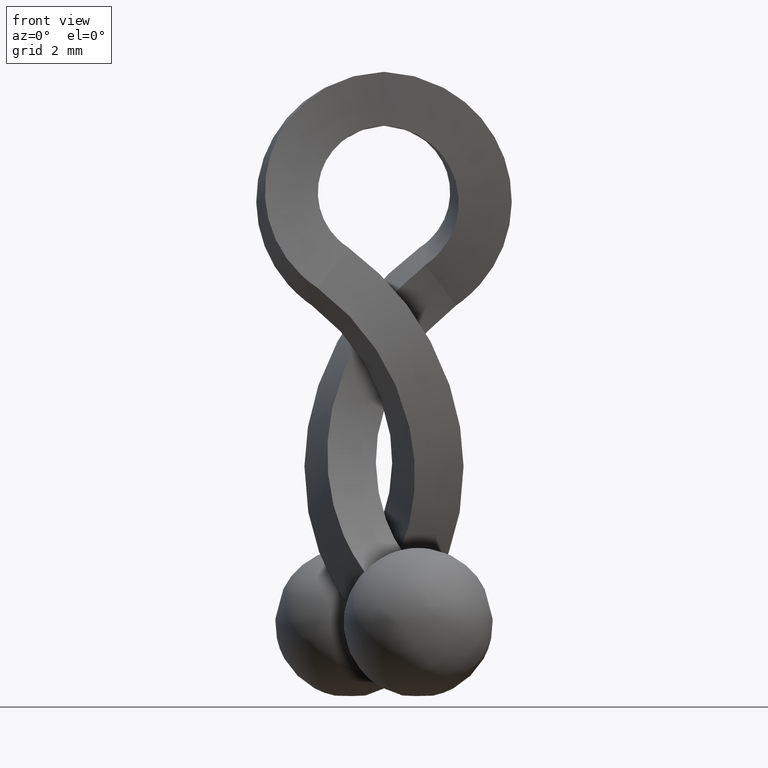
[diagram: clean part render]
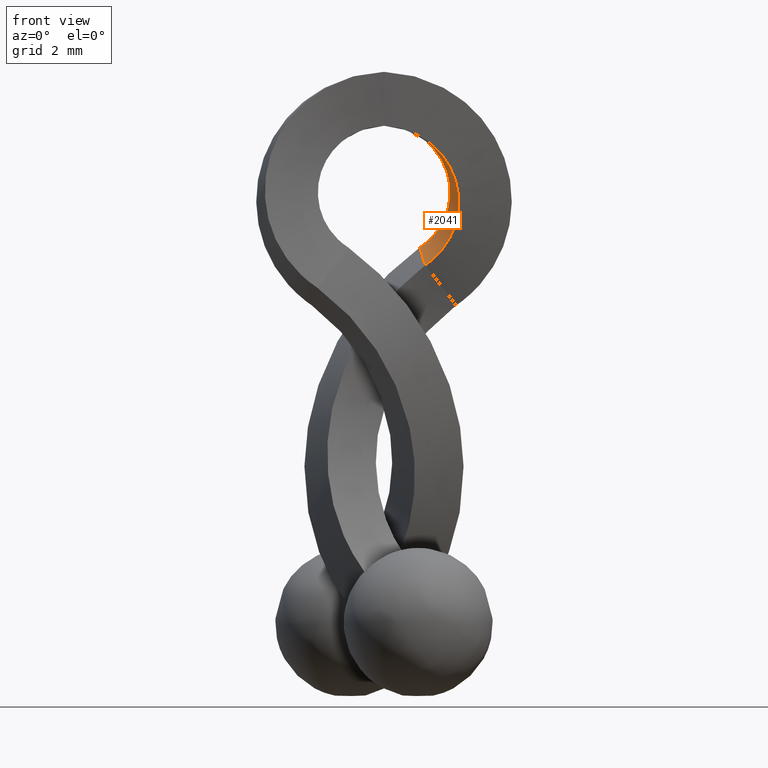
[diagram: same view with one face highlighted and labeled with its STEP entity id]
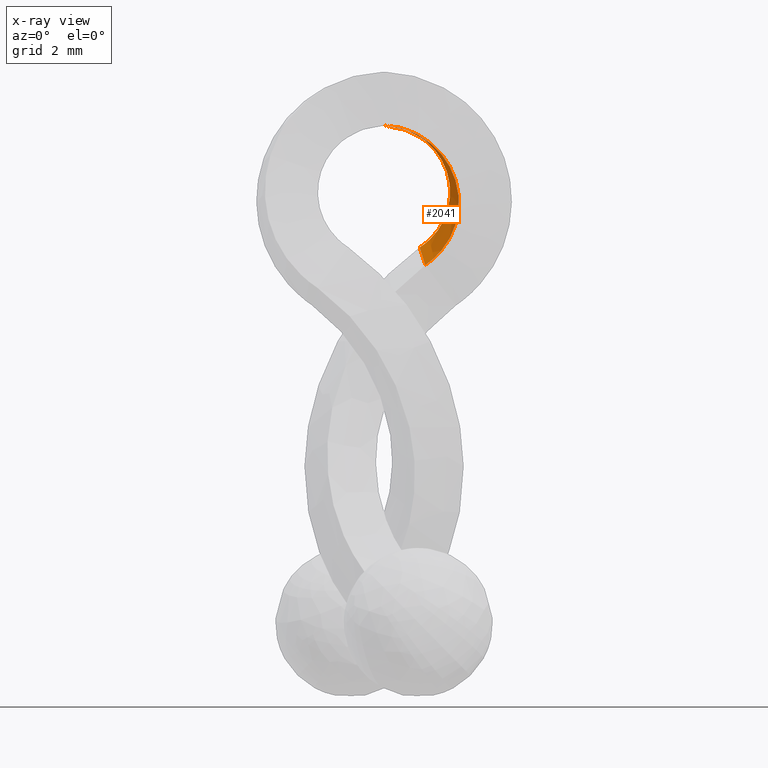
[diagram: x-ray of the same camera — body ghosted, the highlighted face saturated]
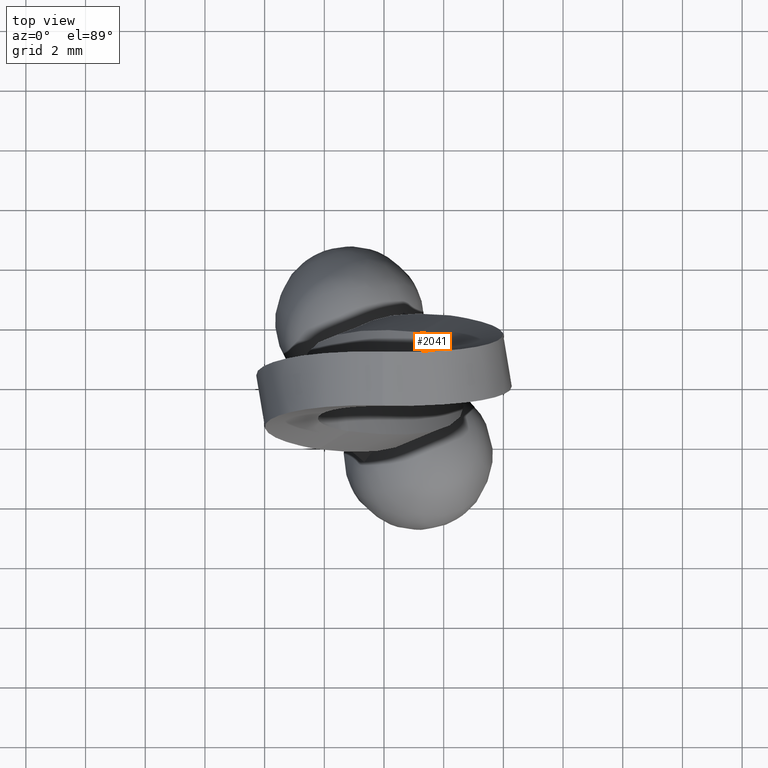
[diagram: same view with one face highlighted and labeled with its STEP entity id]
A machine part, front view. The second image highlights one B-rep face of the part: STEP entity #2041.
The next image is the same camera in x-ray: the body ghosted, the highlighted face saturated — about 0% of this face is hidden behind the body in this view.
A second angle (top view) of the same face is appended — the face is thin or edge-on in the first view.
In plain terms, the highlighted face is a freeform B-spline surface patch.
Its self-contained STEP definition (entity closure, byte-faithful):
#892=CARTESIAN_POINT('',(0.001614231501468,0.899942389103779,2.349971016263345));
#893=VERTEX_POINT('',#892);
#894=CARTESIAN_POINT('',(-0.001614241152610,-0.899942338795367,2.349970760357300));
#895=VERTEX_POINT('',#894);
#896=CARTESIAN_POINT('',(0.001614231501468,0.899942389103779,2.349971016263345));
#897=CARTESIAN_POINT('',(0.000842957433944,0.299980868961258,2.349920427067086));
#898=CARTESIAN_POINT('',(-0.000233128212489,-0.299980789215297,2.349920750589676));
#899=CARTESIAN_POINT('',(-0.001614241152610,-0.899942338795367,2.349970760357300));
#900=B_SPLINE_CURVE_WITH_KNOTS('',3,(#896,#897,#898,#899),.UNSPECIFIED.,.F.,.U.,(4,4),(0.000271788514540,1.0),.UNSPECIFIED.);
#901=EDGE_CURVE('',#893,#895,#900,.T.);
#1389=CARTESIAN_POINT('',(1.197166862828958,1.658578816912535,-1.730195228560345));
#1390=VERTEX_POINT('',#1389);
#1507=CARTESIAN_POINT('',(1.381200528835150,-0.031832750880373,-2.321052976440520));
#1508=VERTEX_POINT('',#1507);
#1530=CARTESIAN_POINT('',(1.197166862828958,1.658578816912535,-1.730195228560345));
#1531=CARTESIAN_POINT('',(1.228175322233841,1.376794955205947,-1.828428010162890));
#1532=CARTESIAN_POINT('',(1.259688929096808,1.094938959108398,-1.926294580400858));
#1533=CARTESIAN_POINT('',(1.305582480815932,0.672351916493907,-2.074091736324356));
#1534=CARTESIAN_POINT('',(1.320391880107309,0.531560724665987,-2.123711092235231));
#1535=CARTESIAN_POINT('',(1.350512118127822,0.249905504944384,-2.222587487899948));
#1536=CARTESIAN_POINT('',(1.365783213188821,0.109047087114961,-2.271873200876238));
#1537=CARTESIAN_POINT('',(1.381200528835150,-0.031832750880373,-2.321052976440520));
#1538=B_SPLINE_CURVE_WITH_KNOTS('',3,(#1530,#1531,#1532,#1533,#1534,#1535,#1536,#1537),.UNSPECIFIED.,.F.,.U.,(4,2,2,4),(0.0,0.500000000000000,0.750000000000000,1.0),.UNSPECIFIED.);
#1539=EDGE_CURVE('',#1390,#1508,#1538,.T.);
#1907=CARTESIAN_POINT('',(0.001614231501468,0.899942389103779,2.349971016263345));
#1908=CARTESIAN_POINT('',(0.474239419182712,0.887047819684404,2.338112238723148));
#1909=CARTESIAN_POINT('',(0.942708242516714,0.903630581942932,2.176053555191966));
#1910=CARTESIAN_POINT('',(1.697424118269983,0.989640959308435,1.611460790929850));
#1911=CARTESIAN_POINT('',(1.981538487007214,1.058909423768376,1.210092694447402));
#1912=CARTESIAN_POINT('',(2.256900521556040,1.224092801934461,0.319210001972370));
#1913=CARTESIAN_POINT('',(2.247446453143137,1.319586802889289,-0.168034475959044));
#1914=CARTESIAN_POINT('',(2.015207034504559,1.455472911786035,-0.825330325780179));
#1915=CARTESIAN_POINT('',(1.902491642270080,1.499470399169816,-1.031969709849321));
#1916=CARTESIAN_POINT('',(1.688405903379418,1.560418974146520,-1.308675988604890));
#1917=CARTESIAN_POINT('',(1.609608686752554,1.579889398982733,-1.395357300653980));
#1918=CARTESIAN_POINT('',(1.481716867534927,1.607464915709655,-1.515437875878530));
#1919=CARTESIAN_POINT('',(1.437472562070366,1.616385619513328,-1.553811038094431));
#1920=CARTESIAN_POINT('',(1.346011916762947,1.633632422473700,-1.627024157038205));
#1921=CARTESIAN_POINT('',(1.310393056693988,1.640149360395701,-1.654514226067049));
#1922=CARTESIAN_POINT('',(1.234702522880327,1.652494859789808,-1.705237223715885));
#1923=CARTESIAN_POINT('',(1.216429976986690,1.655459680331341,-1.717402874633035));
#1924=CARTESIAN_POINT('',(1.197166862828958,1.658578816912535,-1.730195228560345));
#1925=B_SPLINE_CURVE_WITH_KNOTS('',3,(#1907,#1908,#1909,#1910,#1911,#1912,#1913,#1914,#1915,#1916,#1917,#1918,#1919,#1920,#1921,#1922,#1923,#1924),.UNSPECIFIED.,.F.,.U.,(4,2,2,2,2,2,2,2,4),(0.003974935133585,0.252768754986897,0.501845836657931,0.750922918328966,0.875461459164483,0.937730729582241,0.968865364791121,1.0,1.008028116555070),.UNSPECIFIED.);
#1926=EDGE_CURVE('',#893,#1390,#1925,.T.);
#1934=CARTESIAN_POINT('',(-0.024256623418193,-0.899401288106165,2.350931023790685));
#1935=CARTESIAN_POINT('',(-0.023184678266354,-0.299402270183707,2.350759484635895));
#1936=CARTESIAN_POINT('',(-0.022112733114515,0.300596747738752,2.350587945481105));
#1937=CARTESIAN_POINT('',(-0.021040787962676,0.900595765661211,2.350416406326320));
#1938=CARTESIAN_POINT('',(-0.016169904806384,-0.899608120213346,2.350657655307770));
#1939=CARTESIAN_POINT('',(-0.015455532902787,-0.299608447577566,2.350541662889390));
#1940=CARTESIAN_POINT('',(-0.014741160999191,0.300391225058213,2.350425670471020));
#1941=CARTESIAN_POINT('',(-0.014026789095594,0.900390897693995,2.350309678052645));
#1942=CARTESIAN_POINT('',(-0.008084237874349,-0.899807693948086,2.350347309208815));
#1943=CARTESIAN_POINT('',(-0.007727186580335,-0.299807693948096,2.350288497398610));
#1944=CARTESIAN_POINT('',(-0.007370135286322,0.300192306051896,2.350229685588400));
#1945=CARTESIAN_POINT('',(-0.007013083992308,0.900192306051886,2.350170873778195));
#1946=CARTESIAN_POINT('',(0.545443273278013,-0.912974883230886,2.326567058683705));
#1947=CARTESIAN_POINT('',(0.521353033782110,-0.312974883229998,2.330535089655275));
#1948=CARTESIAN_POINT('',(0.497262794286208,0.287025116770873,2.334503120626845));
#1949=CARTESIAN_POINT('',(0.473172554790305,0.887025116771762,2.338471151598415));
#1950=CARTESIAN_POINT('',(1.082850245644224,-0.891788052454635,2.129606430373335));
#1951=CARTESIAN_POINT('',(1.035993045349412,-0.293325406593634,2.145193234729060));
#1952=CARTESIAN_POINT('',(0.989135845054600,0.305137239267349,2.160780039084860));
#1953=CARTESIAN_POINT('',(0.942278644759788,0.903599885128275,2.176366843440585));
#1954=CARTESIAN_POINT('',(1.941186982099940,-0.788991869399871,1.462079058148144));
#1955=CARTESIAN_POINT('',(1.859932448873755,-0.196105339505440,1.511872106660995));
#1956=CARTESIAN_POINT('',(1.778677915647570,0.396781190389010,1.561665155173770));
#1957=CARTESIAN_POINT('',(1.697423382421385,0.989667720283516,1.611458203686620));
#1958=CARTESIAN_POINT('',(2.259929131862020,-0.707644462479150,0.993213374110169));
#1959=CARTESIAN_POINT('',(2.167131895207405,-0.118782484915507,1.065506723938864));
#1960=CARTESIAN_POINT('',(2.074334658552940,0.470079492648136,1.137800073767598));
#1961=CARTESIAN_POINT('',(1.981537421898330,1.058941470211910,1.210093423596370));
#1962=CARTESIAN_POINT('',(2.557697644862580,-0.515386589328219,-0.039875501034421));
#1963=CARTESIAN_POINT('',(2.457431360943185,0.064454106023114,0.079822136802916));
#1964=CARTESIAN_POINT('',(2.357165077023645,0.644294801374448,0.199519774640215));
#1965=CARTESIAN_POINT('',(2.256898793104250,1.224135496725650,0.319217412477476));
#1966=CARTESIAN_POINT('',(2.535965168349240,-0.404966026141508,-0.601466207540545));
#1967=CARTESIAN_POINT('',(2.439791576332510,0.169900927047552,-0.456985377532142));
#1968=CARTESIAN_POINT('',(2.343617984315780,0.744767880236651,-0.312504547523739));
#1969=CARTESIAN_POINT('',(2.247444392299050,1.319634833425710,-0.168023717515336));
#1970=CARTESIAN_POINT('',(2.253519789521085,-0.248780855608781,-1.354352493688706));
#1971=CARTESIAN_POINT('',(2.174081381999480,0.319321919915299,-1.178006819429066));
#1972=CARTESIAN_POINT('',(2.094642974477875,0.887424695439361,-1.001661145169424));
#1973=CARTESIAN_POINT('',(2.015204566956275,1.455527470963442,-0.825315470909782));
#1974=CARTESIAN_POINT('',(2.118934938592865,-0.198372296167681,-1.590192635167155));
#1975=CARTESIAN_POINT('',(2.046786310530400,0.367594099132099,-1.404112971152320));
#1976=CARTESIAN_POINT('',(1.974637682467930,0.933560494431878,-1.218033307137484));
#1977=CARTESIAN_POINT('',(1.902489054405460,1.499526889731668,-1.031953643122612));
#1978=CARTESIAN_POINT('',(1.865884634101405,-0.128791885776215,-1.904647823901470));
#1979=CARTESIAN_POINT('',(1.806724144867085,0.434298028951411,-1.705984689247925));
#1980=CARTESIAN_POINT('',(1.747563655632765,0.997387943679037,-1.507321554594385));
#1981=CARTESIAN_POINT('',(1.688403166398445,1.560477858406660,-1.308658419940860));
#1982=CARTESIAN_POINT('',(1.773083005328385,-0.106608727740722,-2.002902999914010));
#1983=CARTESIAN_POINT('',(1.718590638648275,0.455577180612090,-1.800381761256115));
#1984=CARTESIAN_POINT('',(1.664098271968145,1.017763088964892,-1.597860522598205));
#1985=CARTESIAN_POINT('',(1.609605905288015,1.579948997317710,-1.395339283940314));
#1986=CARTESIAN_POINT('',(1.622919340496245,-0.075261316724827,-2.138615566238175));
#1987=CARTESIAN_POINT('',(1.575850902999325,0.485667604228232,-1.930883468932365));
#1988=CARTESIAN_POINT('',(1.528782465502410,1.046596525181296,-1.723151371626565));
#1989=CARTESIAN_POINT('',(1.481714028005500,1.607525446134355,-1.515419274320755));
#1990=CARTESIAN_POINT('',(1.571040496617935,-0.065132752720187,-2.181911797299495));
#1991=CARTESIAN_POINT('',(1.526516899287535,0.495393644022024,-1.972538616899815));
#1992=CARTESIAN_POINT('',(1.481993301957144,1.055920040764240,-1.763165436500150));
#1993=CARTESIAN_POINT('',(1.437469704626754,1.616446437506455,-1.553792256100485));
#1994=CARTESIAN_POINT('',(1.463933755167680,-0.045576209284470,-2.264366786508600));
#1995=CARTESIAN_POINT('',(1.424625512271422,0.514180449690322,-2.051912872428080));
#1996=CARTESIAN_POINT('',(1.385317269375154,1.073937108665110,-1.839458958347550));
#1997=CARTESIAN_POINT('',(1.346009026478886,1.633693767639900,-1.627005044267020));
#1998=CARTESIAN_POINT('',(1.416213722249492,-0.037434754176670,-2.298177331342225));
#1999=CARTESIAN_POINT('',(1.380939199606864,0.521780463752254,-2.083616551407960));
#2000=CARTESIAN_POINT('',(1.345664676964238,1.080995681681170,-1.869055771473670));
#2001=CARTESIAN_POINT('',(1.310390154321620,1.640210899610105,-1.654494991539400));
#2002=CARTESIAN_POINT('',(1.322574723634835,-0.022371288588081,-2.359853547787433));
#2003=CARTESIAN_POINT('',(1.289286259593809,0.536589957598735,-2.144319987458216));
#2004=CARTESIAN_POINT('',(1.255997795552784,1.095551203785557,-1.928786427129012));
#2005=CARTESIAN_POINT('',(1.222709331511754,1.654512449972368,-1.713252866799799));
#2006=CARTESIAN_POINT('',(1.287532765484260,-0.016690839226108,-2.383156092587595));
#2007=CARTESIAN_POINT('',(1.253868595981103,0.542327165980175,-2.167851159982682));
#2008=CARTESIAN_POINT('',(1.220204426477948,1.101345171186461,-1.952546227377776));
#2009=CARTESIAN_POINT('',(1.186540256974790,1.660363176392739,-1.737241294772864));
#2010=CARTESIAN_POINT('',(1.253296806045644,-0.011136961039704,-2.405943562945085));
#2011=CARTESIAN_POINT('',(1.219380109027515,0.547915180505829,-2.190771756707281));
#2012=CARTESIAN_POINT('',(1.185463412009389,1.106967322051364,-1.975599950469482));
#2013=CARTESIAN_POINT('',(1.151546714991261,1.666019463596895,-1.760428144231680));
#2014=B_SPLINE_SURFACE_WITH_KNOTS('',3,3,((#1934,#1938,#1942,#1946,#1950,#1954,#1958,#1962,#1966,#1970,#1974,#1978,#1982,#1986,#1990,#1994,#1998,#2002,#2006,#2010),(#1935,#1939,#1943,#1947,#1951,#1955,#1959,#1963,#1967,#1971,#1975,#1979,#1983,#1987,#1991,#1995,#1999,#2003,#2007,#2011),(#1936,#1940,#1944,#1948,#1952,#1956,#1960,#1964,#1968,#1972,#1976,#1980,#1984,#1988,#1992,#1996,#2000,#2004,#2008,#2012),(#1937,#1941,#1945,#1949,#1953,#1957,#1961,#1965,#1969,#1973,#1977,#1981,#1985,#1989,#1993,#1997,#2001,#2005,#2009,#2013)),.UNSPECIFIED.,.F.,.F.,.U.,(4,4),(4,2,2,2,2,2,2,2,2,4),(0.0,1.0),(0.0,0.032961879087331,2.256898816894975,4.480835754702618,6.704772692510267,7.816741161414089,8.372725395865995,8.650717513091957,8.928709630317909,9.055782617139782),.UNSPECIFIED.);
#2015=CARTESIAN_POINT('',(-0.001614241152610,-0.899942338795367,2.349970760357300));
#2016=CARTESIAN_POINT('',(-0.001077383727488,-0.899955173713573,2.349948026277731));
#2017=CARTESIAN_POINT('',(-0.000540532493644,-0.899967976585885,2.349925129197020));
#2018=CARTESIAN_POINT('',(0.545439670346973,-0.912956116162763,2.326472647676902));
#2019=CARTESIAN_POINT('',(1.082846809658473,-0.891770243144993,2.129518962794155));
#2020=CARTESIAN_POINT('',(1.941183982377908,-0.788976562919842,1.462009735243508));
#2021=CARTESIAN_POINT('',(2.259926400346948,-0.707630694692049,0.993155206212961));
#2022=CARTESIAN_POINT('',(2.557695449893124,-0.515375899683374,-0.039911353433424));
#2023=CARTESIAN_POINT('',(2.535963240351447,-0.404956868102309,-0.601490956312617));
#2024=CARTESIAN_POINT('',(2.253518185360163,-0.248773555410969,-1.354363773734244));
#2025=CARTESIAN_POINT('',(2.118933429671061,-0.198365542352719,-1.590199954120414));
#2026=CARTESIAN_POINT('',(1.865883242265159,-0.128785803676751,-1.904650273142803));
#2027=CARTESIAN_POINT('',(1.773081648229606,-0.106602844928814,-2.002904004387483));
#2028=CARTESIAN_POINT('',(1.622918028420667,-0.075255692209347,-2.138614698149175));
#2029=CARTESIAN_POINT('',(1.571039198371736,-0.065127207543342,-2.181910354032060));
#2030=CARTESIAN_POINT('',(1.472376354708494,-0.047112558411738,-2.257863949721399));
#2031=CARTESIAN_POINT('',(1.431405715002672,-0.040037445280720,-2.287328211102668));
#2032=CARTESIAN_POINT('',(1.381200528835150,-0.031832750880373,-2.321052976440520));
#2033=B_SPLINE_CURVE_WITH_KNOTS('',3,(#2015,#2016,#2017,#2018,#2019,#2020,#2021,#2022,#2023,#2024,#2025,#2026,#2027,#2028,#2029,#2030,#2031,#2032),.UNSPECIFIED.,.F.,.U.,(4,2,2,2,2,2,2,2,4),(0.003446522711226,0.003691673315863,0.252768754986897,0.501845836657931,0.750922918328966,0.875461459164483,0.937730729582241,0.968865364791121,0.995090935444915),.UNSPECIFIED.);
#2034=EDGE_CURVE('',#895,#1508,#2033,.T.);
#2035=ORIENTED_EDGE('',*,*,#2034,.F.);
#2036=ORIENTED_EDGE('',*,*,#901,.F.);
#2037=ORIENTED_EDGE('',*,*,#1926,.T.);
#2038=ORIENTED_EDGE('',*,*,#1539,.T.);
#2039=EDGE_LOOP('',(#2035,#2036,#2037,#2038));
#2040=FACE_OUTER_BOUND('',#2039,.T.);
#2041=ADVANCED_FACE('',(#2040),#2014,.T.);